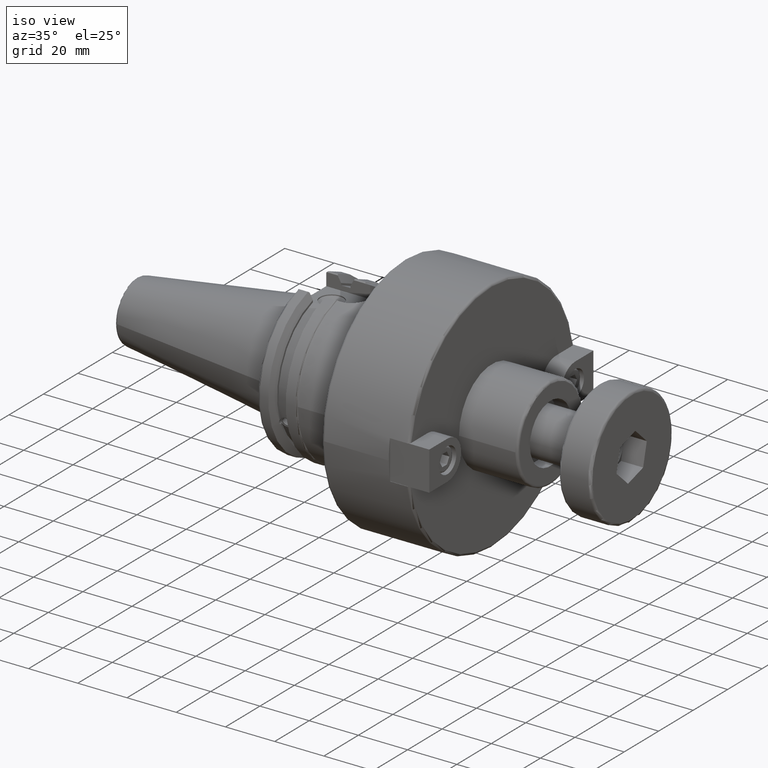
[diagram: clean part render]
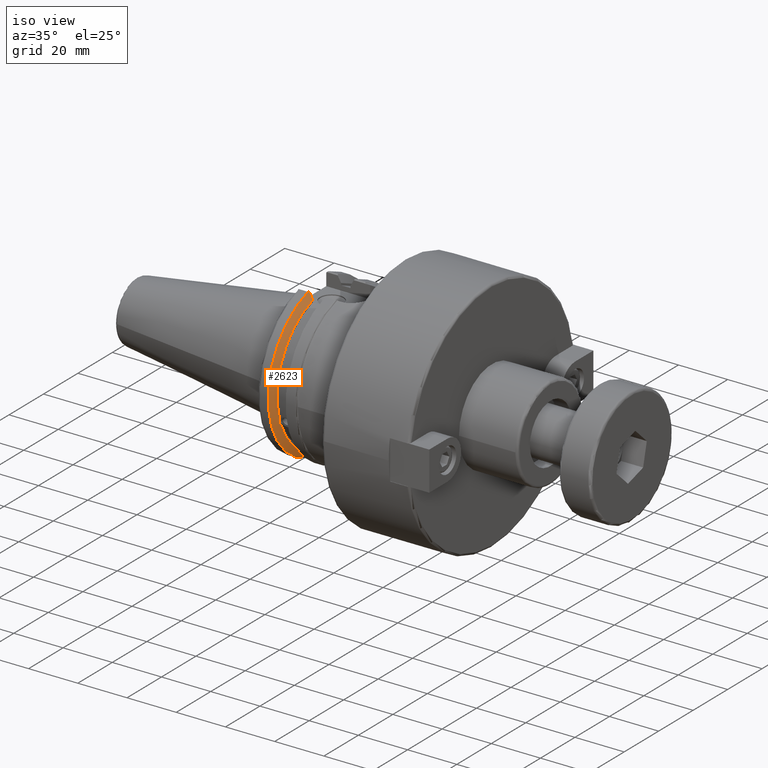
[diagram: same view with one face highlighted and labeled with its STEP entity id]
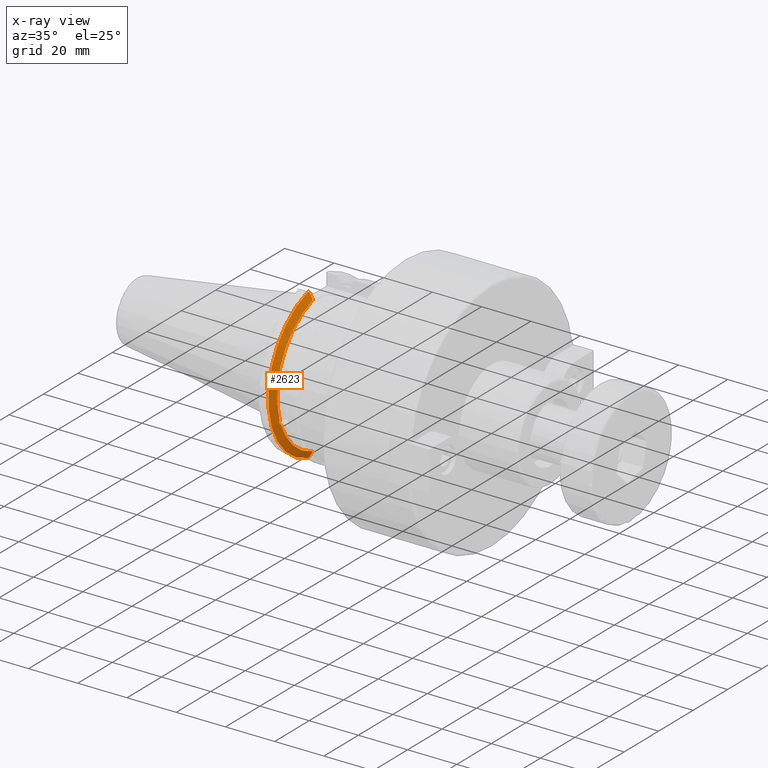
[diagram: x-ray of the same camera — body ghosted, the highlighted face saturated]
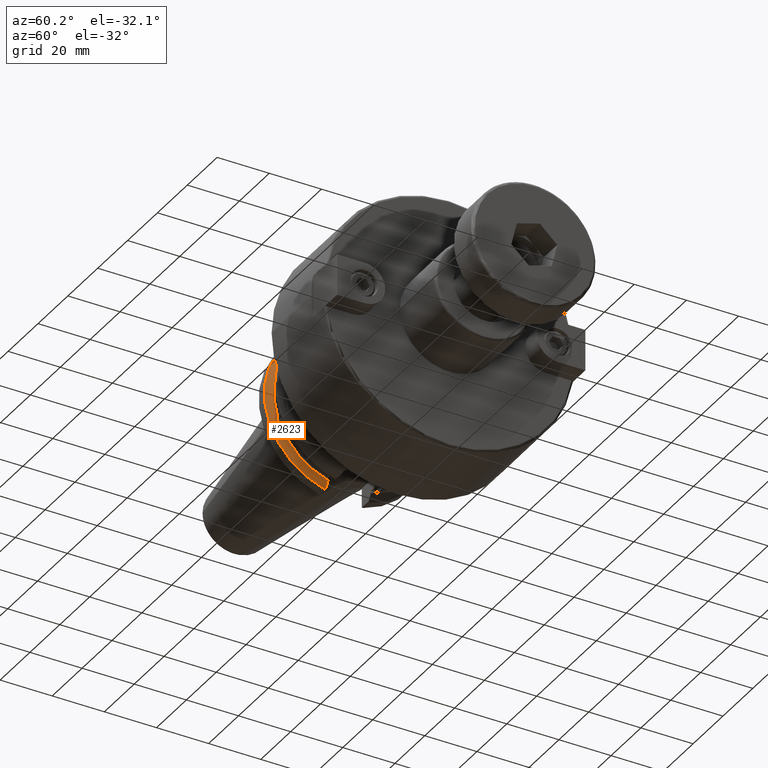
[diagram: same view with one face highlighted and labeled with its STEP entity id]
A machine part, iso view. The second image highlights one B-rep face of the part: STEP entity #2623.
The next image is the same camera in x-ray: the body ghosted, the highlighted face saturated — about 0% of this face is hidden behind the body in this view.
A second angle (auxiliary view) of the same face is appended — the face is thin or edge-on in the first view.
In plain terms, the highlighted conical surface has half-angle 60 deg.
Its self-contained STEP definition (entity closure, byte-faithful):
#61=(
BOUNDED_CURVE()
B_SPLINE_CURVE(2,(#4690,#4691,#4692),.UNSPECIFIED.,.F.,.F.)
B_SPLINE_CURVE_WITH_KNOTS((3,3),(0.,0.276549142797088),.UNSPECIFIED.)
CURVE()
GEOMETRIC_REPRESENTATION_ITEM()
RATIONAL_B_SPLINE_CURVE((1.,1.00095203903867,1.00031614444995))
REPRESENTATION_ITEM('')
);
#64=(
BOUNDED_CURVE()
B_SPLINE_CURVE(2,(#4788,#4789,#4790),.UNSPECIFIED.,.F.,.F.)
B_SPLINE_CURVE_WITH_KNOTS((3,3),(0.,0.0639048713675838),.UNSPECIFIED.)
CURVE()
GEOMETRIC_REPRESENTATION_ITEM()
RATIONAL_B_SPLINE_CURVE((1.,1.00028444218292,1.00047644010588))
REPRESENTATION_ITEM('')
);
#65=(
BOUNDED_CURVE()
B_SPLINE_CURVE(2,(#4798,#4799,#4800),.UNSPECIFIED.,.F.,.F.)
B_SPLINE_CURVE_WITH_KNOTS((3,3),(0.329353533631213,0.393258405001024),
 .UNSPECIFIED.)
CURVE()
GEOMETRIC_REPRESENTATION_ITEM()
RATIONAL_B_SPLINE_CURVE((1.00047644010576,1.00028444218285,1.))
REPRESENTATION_ITEM('')
);
#67=(
BOUNDED_CURVE()
B_SPLINE_CURVE(2,(#4846,#4847,#4848),.UNSPECIFIED.,.F.,.F.)
B_SPLINE_CURVE_WITH_KNOTS((3,3),(0.0550586467393311,0.331607789535851),
 .UNSPECIFIED.)
CURVE()
GEOMETRIC_REPRESENTATION_ITEM()
RATIONAL_B_SPLINE_CURVE((1.00031614445049,1.00095203904028,1.))
REPRESENTATION_ITEM('')
);
#171=CONICAL_SURFACE('',#2986,30.3546886482472,1.0471975511966);
#256=CIRCLE('',#2896,28.9593772964944);
#280=CIRCLE('',#2956,31.75);
#292=CIRCLE('',#2987,28.9593772964944);
#437=FACE_OUTER_BOUND('',#604,.T.);
#604=EDGE_LOOP('',(#2188,#2189,#2190,#2191,#2192,#2193,#2194,#2195));
#1021=B_SPLINE_CURVE_WITH_KNOTS('',3,(#4370,#4371,#4372,#4373,#4374,#4375,
#4376,#4377,#4378,#4379,#4380,#4381,#4382,#4383),.UNSPECIFIED.,.F.,.F.,
(4,2,2,2,2,2,4),(0.451995700189025,0.464547828547662,0.504528771685168,
0.544509714822673,0.584490657960178,0.624471601097683,0.637023729456319),
 .UNSPECIFIED.);
#1124=VERTEX_POINT('',#4367);
#1125=VERTEX_POINT('',#4369);
#1142=VERTEX_POINT('',#4462);
#1191=VERTEX_POINT('',#4687);
#1192=VERTEX_POINT('',#4689);
#1207=VERTEX_POINT('',#4786);
#1208=VERTEX_POINT('',#4792);
#1209=VERTEX_POINT('',#4796);
#1413=EDGE_CURVE('',#1125,#1124,#1021,.T.);
#1437=EDGE_CURVE('',#1125,#1142,#256,.T.);
#1508=EDGE_CURVE('',#1192,#1191,#61,.T.);
#1533=EDGE_CURVE('',#1207,#1191,#64,.T.);
#1535=EDGE_CURVE('',#1207,#1208,#280,.T.);
#1537=EDGE_CURVE('',#1209,#1208,#65,.T.);
#1552=EDGE_CURVE('',#1209,#1142,#67,.T.);
#1564=EDGE_CURVE('',#1192,#1124,#292,.T.);
#2188=ORIENTED_EDGE('',*,*,#1413,.T.);
#2189=ORIENTED_EDGE('',*,*,#1564,.F.);
#2190=ORIENTED_EDGE('',*,*,#1508,.T.);
#2191=ORIENTED_EDGE('',*,*,#1533,.F.);
#2192=ORIENTED_EDGE('',*,*,#1535,.T.);
#2193=ORIENTED_EDGE('',*,*,#1537,.F.);
#2194=ORIENTED_EDGE('',*,*,#1552,.T.);
#2195=ORIENTED_EDGE('',*,*,#1437,.F.);
#2623=ADVANCED_FACE('',(#437),#171,.T.);
#2896=AXIS2_PLACEMENT_3D('',#4463,#3381,#3382);
#2956=AXIS2_PLACEMENT_3D('',#4794,#3543,#3544);
#2986=AXIS2_PLACEMENT_3D('',#4876,#3614,#3615);
#2987=AXIS2_PLACEMENT_3D('',#4877,#3616,#3617);
#3381=DIRECTION('center_axis',(1.,0.,0.));
#3382=DIRECTION('ref_axis',(0.,0.,-1.));
#3543=DIRECTION('center_axis',(1.,0.,0.));
#3544=DIRECTION('ref_axis',(0.,0.,-1.));
#3614=DIRECTION('center_axis',(-1.,0.,0.));
#3615=DIRECTION('ref_axis',(0.,-1.,-1.22464679914735E-16));
#3616=DIRECTION('center_axis',(1.,0.,0.));
#3617=DIRECTION('ref_axis',(0.,0.,-1.));
#4367=CARTESIAN_POINT('',(9.2191,-27.4956274489925,-9.09043478536247));
#4369=CARTESIAN_POINT('',(9.21909999999999,-26.9060914640648,-10.7101715919071));
#4370=CARTESIAN_POINT('Ctrl Pts',(9.21909999999999,-26.9060914640648,-10.7101715919071));
#4371=CARTESIAN_POINT('Ctrl Pts',(9.20497959280038,-26.9406927482839,-10.6893765730703));
#4372=CARTESIAN_POINT('Ctrl Pts',(9.19150701821433,-26.9744191989197,-10.6676007180673));
#4373=CARTESIAN_POINT('Ctrl Pts',(9.13811855884095,-27.1113422433188,-10.5723885976054));
#4374=CARTESIAN_POINT('Ctrl Pts',(9.09998029158246,-27.2180531796526,-10.4801333026531));
#4375=CARTESIAN_POINT('Ctrl Pts',(9.04778935539424,-27.3968610665578,-10.2639559818059));
#4376=CARTESIAN_POINT('Ctrl Pts',(9.0341,-27.4684373304961,-10.139516340139));
#4377=CARTESIAN_POINT('Ctrl Pts',(9.0341,-27.559599249844,-9.8890510252165));
#4378=CARTESIAN_POINT('Ctrl Pts',(9.04778935539424,-27.5847569104121,-9.74771639360671));
#4379=CARTESIAN_POINT('Ctrl Pts',(9.09998029158246,-27.5867382255984,-9.46717946402648));
#4380=CARTESIAN_POINT('Ctrl Pts',(9.13811855884095,-27.5642934663232,-9.32791534028655));
#4381=CARTESIAN_POINT('Ctrl Pts',(9.19150701821433,-27.5206055003512,-9.16696618806878));
#4382=CARTESIAN_POINT('Ctrl Pts',(9.20497959280038,-27.5087667900418,-9.12860597076219));
#4383=CARTESIAN_POINT('Ctrl Pts',(9.21909999999999,-27.4956274489925,-9.09043478536247));
#4462=CARTESIAN_POINT('',(9.2191,-8.19,-27.7771386827498));
#4463=CARTESIAN_POINT('Origin',(9.2191,0.,0.));
#4687=CARTESIAN_POINT('',(7.88668530351255,-8.19,30.1755016258903));
#4689=CARTESIAN_POINT('',(9.2191,-8.19,27.7771386827498));
#4690=CARTESIAN_POINT('Ctrl Pts',(9.2191,-8.19,27.7771386827498));
#4691=CARTESIAN_POINT('Ctrl Pts',(8.58046356153227,-8.19,28.9303689539555));
#4692=CARTESIAN_POINT('Ctrl Pts',(7.88668530351255,-8.19,30.1755016258903));
#4786=CARTESIAN_POINT('',(7.60793323092436,-8.67204822802685,30.5427254764662));
#4788=CARTESIAN_POINT('Ctrl Pts',(7.60793323092436,-8.67204822802685,30.5427254764662));
#4789=CARTESIAN_POINT('Ctrl Pts',(7.74899148121628,-8.42917748262643,30.3577067892629));
#4790=CARTESIAN_POINT('Ctrl Pts',(7.88668530351255,-8.19,30.1755016258903));
#4792=CARTESIAN_POINT('',(7.60793323092436,-8.67204822802685,-30.5427254764662));
#4794=CARTESIAN_POINT('Origin',(7.60793323092436,0.,0.));
#4796=CARTESIAN_POINT('',(7.88668530351256,-8.19,-30.1755016258903));
#4798=CARTESIAN_POINT('Ctrl Pts',(7.88668530351256,-8.19,-30.1755016258903));
#4799=CARTESIAN_POINT('Ctrl Pts',(7.7489914812116,-8.42917748263465,-30.3577067892692));
#4800=CARTESIAN_POINT('Ctrl Pts',(7.60793323092436,-8.67204822802685,-30.5427254764662));
#4846=CARTESIAN_POINT('Ctrl Pts',(7.88668530351256,-8.19,-30.1755016258903));
#4847=CARTESIAN_POINT('Ctrl Pts',(8.5804635615239,-8.19,-28.9303689539705));
#4848=CARTESIAN_POINT('Ctrl Pts',(9.2191,-8.19,-27.7771386827498));
#4876=CARTESIAN_POINT('Origin',(8.41351661546217,0.,0.));
#4877=CARTESIAN_POINT('Origin',(9.2191,0.,0.));